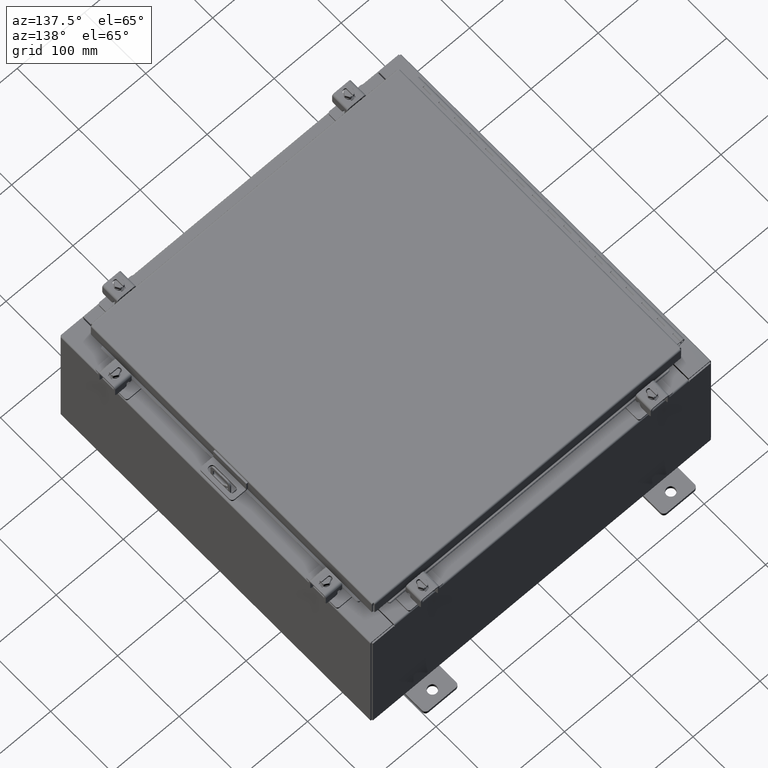
[diagram: clean part render]
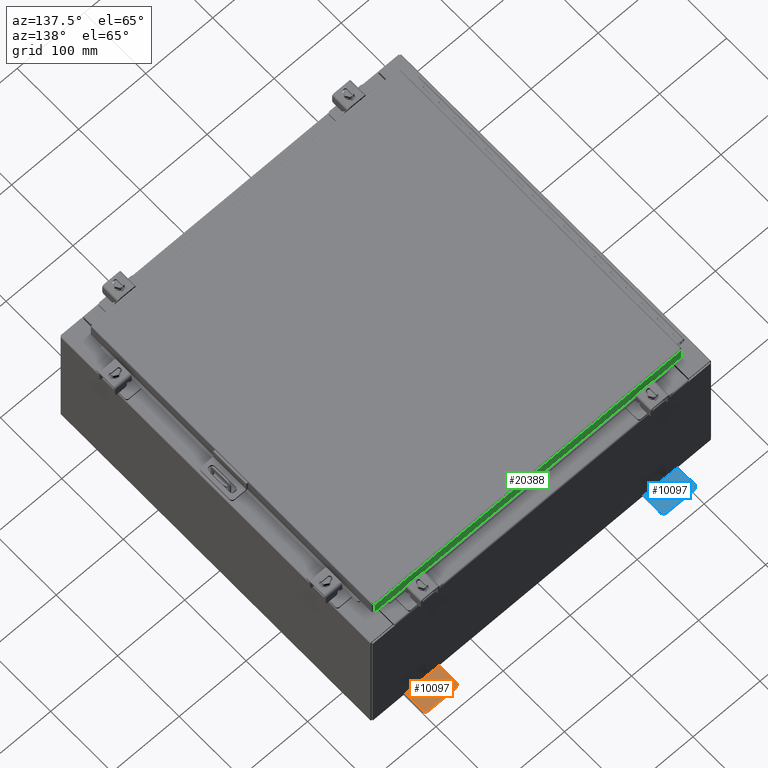
[diagram: same view with three faces highlighted in distinct colors, each labeled with its STEP entity id]
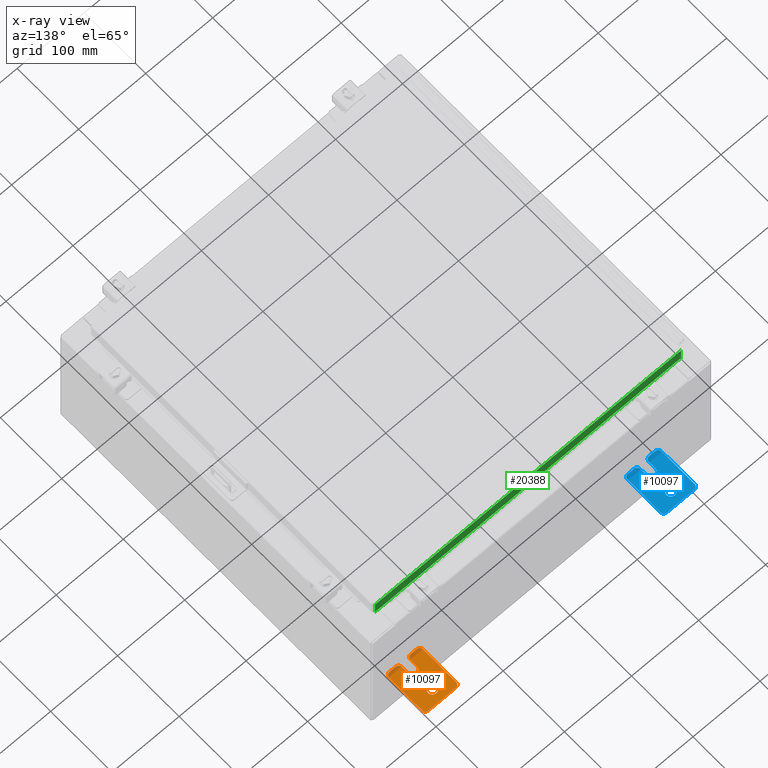
[diagram: x-ray of the same camera — body ghosted, the three highlighted faces saturated]
A machine part, auxiliary view with three faces highlighted in distinct colors.
The next image is the same camera in x-ray (body ghosted, the three faces saturated) — at least one of them is partly hidden behind the body in this view.
Their STEP definitions:

[orange] entity #10097 — the highlighted planar face has unit normal (0, 0, 1).
#347 = CARTESIAN_POINT ( 'NONE',  ( 0.0000000000000000000, 1.059999999999996500, 0.9999999999999953400 ) ) ;
#466 = AXIS2_PLACEMENT_3D ( 'NONE', #19202, #5560, #21464 ) ;
#662 = CARTESIAN_POINT ( 'NONE',  ( 0.0000000000000000000, -1.250000000000002400, 0.8099999999999980500 ) ) ;
#760 = EDGE_CURVE ( 'NONE', #23629, #21292, #14303, .T. ) ;
#955 = DIRECTION ( 'NONE',  ( -5.163192708025533800E-017, 0.0000000000000000000, -1.000000000000000000 ) ) ;
#982 = EDGE_CURVE ( 'NONE', #22516, #4369, #25310, .T. ) ;
#1353 = CARTESIAN_POINT ( 'NONE',  ( 0.0000000000000000000, 1.059999999999993600, -0.8100000000000089400 ) ) ;
#1372 = FACE_OUTER_BOUND ( 'NONE', #18680, .T. ) ;
#1527 = DIRECTION ( 'NONE',  ( -0.0000000000000000000, 0.0000000000000000000, -1.000000000000000000 ) ) ;
#1791 = LINE ( 'NONE', #5269, #19959 ) ;
#1862 = DIRECTION ( 'NONE',  ( -1.000000000000000000, 6.523827964459549700E-016, 5.163192708025532000E-017 ) ) ;
#2011 = CARTESIAN_POINT ( 'NONE',  ( 4.780733988912460100E-016, -0.6249999999999993300, -0.2499999999999998600 ) ) ;
#2078 = CARTESIAN_POINT ( 'NONE',  ( 3.910348609313009100E-016, 0.6249999999999992200, -0.2499999999999999200 ) ) ;
#2173 = CARTESIAN_POINT ( 'NONE',  ( 0.0000000000000000000, -1.250000000000003100, 0.4400000000000020000 ) ) ;
#2844 = DIRECTION ( 'NONE',  ( 1.000000000000000000, 0.0000000000000000000, -0.0000000000000000000 ) ) ;
#3582 = CARTESIAN_POINT ( 'NONE',  ( 0.0000000000000000000, -1.250000000000005600, -1.000000000000006200 ) ) ;
#3638 = VERTEX_POINT ( 'NONE', #2078 ) ;
#3649 = DIRECTION ( 'NONE',  ( 0.0000000000000000000, 0.0000000000000000000, -1.000000000000000000 ) ) ;
#3862 = VERTEX_POINT ( 'NONE', #27881 ) ;
#4307 = ORIENTED_EDGE ( 'NONE', *, *, #10979, .T. ) ;
#4369 = VERTEX_POINT ( 'NONE', #16164 ) ;
#4384 = CARTESIAN_POINT ( 'NONE',  ( 0.0000000000000000000, 1.249999999999994700, -0.8100000000000092700 ) ) ;
#4444 = VERTEX_POINT ( 'NONE', #18748 ) ;
#4639 = CIRCLE ( 'NONE', #8251, 0.1900000000000011100 ) ;
#5055 = CARTESIAN_POINT ( 'NONE',  ( 4.039428427013647300E-016, 0.6249999999999992200, -9.783840404509077400E-018 ) ) ;
#5269 = CARTESIAN_POINT ( 'NONE',  ( 0.0000000000000000000, 1.249999999999997600, 0.9999999999999951200 ) ) ;
#5336 = EDGE_CURVE ( 'NONE', #3638, #22408, #22710, .T. ) ;
#5339 = DIRECTION ( 'NONE',  ( 6.556435184794182400E-016, 1.000000000000000000, 0.0000000000000000000 ) ) ;
#5340 = EDGE_CURVE ( 'NONE', #8873, #4444, #28729, .T. ) ;
#5560 = DIRECTION ( 'NONE',  ( 1.000000000000000000, 0.0000000000000000000, -0.0000000000000000000 ) ) ;
#5920 = LINE ( 'NONE', #11572, #11965 ) ;
#6314 = AXIS2_PLACEMENT_3D ( 'NONE', #16464, #2844, #18771 ) ;
#6325 = EDGE_CURVE ( 'NONE', #10659, #22516, #5920, .T. ) ;
#6500 = AXIS2_PLACEMENT_3D ( 'NONE', #13315, #29231, #15614 ) ;
#6674 = CARTESIAN_POINT ( 'NONE',  ( 0.0000000000000000000, -1.060000000000002100, 0.4400000000000016700 ) ) ;
#7330 = DIRECTION ( 'NONE',  ( -5.163192708025533800E-017, 0.0000000000000000000, -1.000000000000000000 ) ) ;
#7976 = EDGE_CURVE ( 'NONE', #22408, #3638, #25038, .T. ) ;
#8251 = AXIS2_PLACEMENT_3D ( 'NONE', #24496, #10890, #26764 ) ;
#8414 = DIRECTION ( 'NONE',  ( -6.556435184794182400E-016, -1.000000000000000000, -1.639108796198545600E-016 ) ) ;
#8873 = VERTEX_POINT ( 'NONE', #24065 ) ;
#8950 = DIRECTION ( 'NONE',  ( 0.0000000000000000000, 0.0000000000000000000, -1.000000000000000000 ) ) ;
#8965 = VECTOR ( 'NONE', #25726, 39.37007874015748100 ) ;
#9364 = EDGE_CURVE ( 'NONE', #29335, #27128, #1791, .T. ) ;
#9409 = EDGE_CURVE ( 'NONE', #17784, #8873, #18513, .T. ) ;
#9713 = VERTEX_POINT ( 'NONE', #20083 ) ;
#10097 = ADVANCED_FACE ( 'NONE', ( #18845, #1372 ), #12870, .T. ) ;
#10159 = CARTESIAN_POINT ( 'NONE',  ( 0.0000000000000000000, 1.249999999999997300, 0.8099999999999935000 ) ) ;
#10348 = DIRECTION ( 'NONE',  ( 0.0000000000000000000, 1.000000000000000000, -1.639108796198558100E-015 ) ) ;
#10435 = VECTOR ( 'NONE', #8414, 39.37007874015748100 ) ;
#10659 = VERTEX_POINT ( 'NONE', #662 ) ;
#10890 = DIRECTION ( 'NONE',  ( 1.000000000000000000, 0.0000000000000000000, -0.0000000000000000000 ) ) ;
#10923 = CARTESIAN_POINT ( 'NONE',  ( 4.168508244714285900E-016, 0.6249999999999992200, 0.2499999999999999200 ) ) ;
#10979 = EDGE_CURVE ( 'NONE', #27031, #14050, #26199, .T. ) ;
#11338 = EDGE_CURVE ( 'NONE', #4369, #27031, #11633, .T. ) ;
#11572 = CARTESIAN_POINT ( 'NONE',  ( 0.0000000000000000000, -1.250000000000002200, 0.9999999999999992200 ) ) ;
#11633 = LINE ( 'NONE', #18966, #29063 ) ;
#11870 = LINE ( 'NONE', #24410, #10435 ) ;
#11965 = VECTOR ( 'NONE', #23003, 39.37007874015748100 ) ;
#12156 = EDGE_CURVE ( 'NONE', #4444, #9713, #17286, .T. ) ;
#12250 = ORIENTED_EDGE ( 'NONE', *, *, #7976, .F. ) ;
#12454 = VECTOR ( 'NONE', #14511, 39.37007874015748100 ) ;
#12508 = CIRCLE ( 'NONE', #21170, 0.1900000000000011100 ) ;
#12727 = ORIENTED_EDGE ( 'NONE', *, *, #6325, .T. ) ;
#12870 = PLANE ( 'NONE',  #27080 ) ;
#12987 = CARTESIAN_POINT ( 'NONE',  ( 0.0000000000000000000, -0.6249999999999992200, 0.2500000000000005000 ) ) ;
#13315 = CARTESIAN_POINT ( 'NONE',  ( 0.0000000000000000000, 1.059999999999996300, 0.8099999999999938400 ) ) ;
#13386 = ORIENTED_EDGE ( 'NONE', *, *, #9409, .T. ) ;
#14050 = VERTEX_POINT ( 'NONE', #2011 ) ;
#14069 = ORIENTED_EDGE ( 'NONE', *, *, #982, .T. ) ;
#14303 = LINE ( 'NONE', #16711, #8965 ) ;
#14511 = DIRECTION ( 'NONE',  ( 0.0000000000000000000, -1.639108796198553600E-015, -1.000000000000000000 ) ) ;
#14619 = DIRECTION ( 'NONE',  ( 1.000000000000000000, -0.0000000000000000000, -5.163192708025532000E-017 ) ) ;
#15184 = DIRECTION ( 'NONE',  ( 1.000000000000000000, 0.0000000000000000000, -0.0000000000000000000 ) ) ;
#15488 = CARTESIAN_POINT ( 'NONE',  ( 4.780733988912460100E-016, -0.6249999999999993300, 5.858939755051854500E-017 ) ) ;
#15614 = DIRECTION ( 'NONE',  ( 0.0000000000000000000, 0.0000000000000000000, -1.000000000000000000 ) ) ;
#15871 = VECTOR ( 'NONE', #10348, 39.37007874015748100 ) ;
#16164 = CARTESIAN_POINT ( 'NONE',  ( 1.928684683526972300E-016, -1.060000000000002100, 0.2500000000000005000 ) ) ;
#16464 = CARTESIAN_POINT ( 'NONE',  ( 0.0000000000000000000, -1.060000000000001600, 0.8099999999999978300 ) ) ;
#16617 = ORIENTED_EDGE ( 'NONE', *, *, #12156, .T. ) ;
#16711 = CARTESIAN_POINT ( 'NONE',  ( 0.0000000000000000000, 1.249999999999994200, -1.000000000000010400 ) ) ;
#17283 = DIRECTION ( 'NONE',  ( 1.000000000000000000, 0.0000000000000000000, -0.0000000000000000000 ) ) ;
#17286 = LINE ( 'NONE', #3582, #15871 ) ;
#17770 = DIRECTION ( 'NONE',  ( -6.523827964459551700E-016, -1.000000000000000000, 0.0000000000000000000 ) ) ;
#17784 = VERTEX_POINT ( 'NONE', #19106 ) ;
#18513 = LINE ( 'NONE', #21277, #12454 ) ;
#18680 = EDGE_LOOP ( 'NONE', ( #26521, #26258, #12727, #14069, #28560, #4307, #29493, #28456, #13386, #21836, #16617, #28951, #24698, #28303 ) ) ;
#18748 = CARTESIAN_POINT ( 'NONE',  ( 0.0000000000000000000, -1.060000000000004500, -1.000000000000006400 ) ) ;
#18771 = DIRECTION ( 'NONE',  ( 0.0000000000000000000, 0.0000000000000000000, -1.000000000000000000 ) ) ;
#18845 = FACE_BOUND ( 'NONE', #28246, .T. ) ;
#18966 = CARTESIAN_POINT ( 'NONE',  ( 6.829619984160658000E-017, -1.250000000000003800, 0.2500000000000005000 ) ) ;
#19106 = CARTESIAN_POINT ( 'NONE',  ( 0.0000000000000000000, -1.250000000000004700, -0.4400000000000002200 ) ) ;
#19202 = CARTESIAN_POINT ( 'NONE',  ( 0.0000000000000000000, -1.060000000000004100, -0.8100000000000050500 ) ) ;
#19959 = VECTOR ( 'NONE', #27906, 39.37007874015748100 ) ;
#20083 = CARTESIAN_POINT ( 'NONE',  ( 0.0000000000000000000, 1.059999999999993400, -1.000000000000010000 ) ) ;
#20338 = EDGE_CURVE ( 'NONE', #14050, #3862, #11870, .T. ) ;
#20785 = AXIS2_PLACEMENT_3D ( 'NONE', #6674, #22582, #8950 ) ;
#20949 = DIRECTION ( 'NONE',  ( 1.000000000000000000, -0.0000000000000000000, -5.163192708025532000E-017 ) ) ;
#21170 = AXIS2_PLACEMENT_3D ( 'NONE', #1353, #17283, #3649 ) ;
#21277 = CARTESIAN_POINT ( 'NONE',  ( 0.0000000000000000000, -1.250000000000002200, 0.9999999999999992200 ) ) ;
#21292 = VERTEX_POINT ( 'NONE', #10159 ) ;
#21464 = DIRECTION ( 'NONE',  ( 0.0000000000000000000, 0.0000000000000000000, -1.000000000000000000 ) ) ;
#21836 = ORIENTED_EDGE ( 'NONE', *, *, #5340, .T. ) ;
#21927 = CARTESIAN_POINT ( 'NONE',  ( 0.0000000000000000000, 0.0000000000000000000, 0.0000000000000000000 ) ) ;
#22408 = VERTEX_POINT ( 'NONE', #10923 ) ;
#22516 = VERTEX_POINT ( 'NONE', #2173 ) ;
#22553 = CARTESIAN_POINT ( 'NONE',  ( 0.0000000000000000000, -1.060000000000001200, 0.9999999999999988900 ) ) ;
#22582 = DIRECTION ( 'NONE',  ( 1.000000000000000000, 0.0000000000000000000, -0.0000000000000000000 ) ) ;
#22710 = CIRCLE ( 'NONE', #28466, 0.2499999999999999200 ) ;
#23003 = DIRECTION ( 'NONE',  ( 0.0000000000000000000, -1.639108796198553600E-015, -1.000000000000000000 ) ) ;
#23017 = EDGE_CURVE ( 'NONE', #3862, #17784, #4639, .T. ) ;
#23629 = VERTEX_POINT ( 'NONE', #4384 ) ;
#24065 = CARTESIAN_POINT ( 'NONE',  ( 0.0000000000000000000, -1.250000000000005300, -0.8100000000000047200 ) ) ;
#24410 = CARTESIAN_POINT ( 'NONE',  ( 4.780733988912460100E-016, -0.6249999999999993300, -0.2499999999999993900 ) ) ;
#24496 = CARTESIAN_POINT ( 'NONE',  ( 0.0000000000000000000, -1.060000000000003400, -0.4400000000000005000 ) ) ;
#24698 = ORIENTED_EDGE ( 'NONE', *, *, #760, .T. ) ;
#25038 = CIRCLE ( 'NONE', #27364, 0.2499999999999999200 ) ;
#25310 = CIRCLE ( 'NONE', #20785, 0.1900000000000011400 ) ;
#25726 = DIRECTION ( 'NONE',  ( 0.0000000000000000000, 1.639108796198553600E-015, 1.000000000000000000 ) ) ;
#26199 = CIRCLE ( 'NONE', #28450, 0.2499999999999999200 ) ;
#26258 = ORIENTED_EDGE ( 'NONE', *, *, #29369, .T. ) ;
#26366 = CIRCLE ( 'NONE', #6500, 0.1900000000000011100 ) ;
#26521 = ORIENTED_EDGE ( 'NONE', *, *, #9364, .T. ) ;
#26764 = DIRECTION ( 'NONE',  ( 0.0000000000000000000, 0.0000000000000000000, -1.000000000000000000 ) ) ;
#27031 = VERTEX_POINT ( 'NONE', #12987 ) ;
#27080 = AXIS2_PLACEMENT_3D ( 'NONE', #21927, #15184, #1527 ) ;
#27128 = VERTEX_POINT ( 'NONE', #22553 ) ;
#27364 = AXIS2_PLACEMENT_3D ( 'NONE', #5055, #20949, #7330 ) ;
#27392 = CIRCLE ( 'NONE', #6314, 0.1900000000000011100 ) ;
#27881 = CARTESIAN_POINT ( 'NONE',  ( 1.928684683526964400E-016, -1.060000000000003400, -0.2499999999999994400 ) ) ;
#27906 = DIRECTION ( 'NONE',  ( 0.0000000000000000000, -1.000000000000000000, 1.639108796198558100E-015 ) ) ;
#28192 = CARTESIAN_POINT ( 'NONE',  ( 4.039428427013647300E-016, 0.6249999999999992200, -9.783840404509077400E-018 ) ) ;
#28246 = EDGE_LOOP ( 'NONE', ( #28592, #12250 ) ) ;
#28303 = ORIENTED_EDGE ( 'NONE', *, *, #28634, .T. ) ;
#28450 = AXIS2_PLACEMENT_3D ( 'NONE', #15488, #1862, #17770 ) ;
#28456 = ORIENTED_EDGE ( 'NONE', *, *, #23017, .T. ) ;
#28466 = AXIS2_PLACEMENT_3D ( 'NONE', #28192, #14619, #955 ) ;
#28560 = ORIENTED_EDGE ( 'NONE', *, *, #11338, .T. ) ;
#28592 = ORIENTED_EDGE ( 'NONE', *, *, #5336, .F. ) ;
#28634 = EDGE_CURVE ( 'NONE', #21292, #29335, #26366, .T. ) ;
#28729 = CIRCLE ( 'NONE', #466, 0.1900000000000011100 ) ;
#28951 = ORIENTED_EDGE ( 'NONE', *, *, #28998, .T. ) ;
#28998 = EDGE_CURVE ( 'NONE', #9713, #23629, #12508, .T. ) ;
#29063 = VECTOR ( 'NONE', #5339, 39.37007874015748100 ) ;
#29231 = DIRECTION ( 'NONE',  ( 1.000000000000000000, 0.0000000000000000000, -0.0000000000000000000 ) ) ;
#29335 = VERTEX_POINT ( 'NONE', #347 ) ;
#29369 = EDGE_CURVE ( 'NONE', #27128, #10659, #27392, .T. ) ;
#29493 = ORIENTED_EDGE ( 'NONE', *, *, #20338, .T. ) ;

[blue] entity #10097 — the highlighted planar face has unit normal (0, 0, 1).
#347 = CARTESIAN_POINT ( 'NONE',  ( 0.0000000000000000000, 1.059999999999996500, 0.9999999999999953400 ) ) ;
#466 = AXIS2_PLACEMENT_3D ( 'NONE', #19202, #5560, #21464 ) ;
#662 = CARTESIAN_POINT ( 'NONE',  ( 0.0000000000000000000, -1.250000000000002400, 0.8099999999999980500 ) ) ;
#760 = EDGE_CURVE ( 'NONE', #23629, #21292, #14303, .T. ) ;
#955 = DIRECTION ( 'NONE',  ( -5.163192708025533800E-017, 0.0000000000000000000, -1.000000000000000000 ) ) ;
#982 = EDGE_CURVE ( 'NONE', #22516, #4369, #25310, .T. ) ;
#1353 = CARTESIAN_POINT ( 'NONE',  ( 0.0000000000000000000, 1.059999999999993600, -0.8100000000000089400 ) ) ;
#1372 = FACE_OUTER_BOUND ( 'NONE', #18680, .T. ) ;
#1527 = DIRECTION ( 'NONE',  ( -0.0000000000000000000, 0.0000000000000000000, -1.000000000000000000 ) ) ;
#1791 = LINE ( 'NONE', #5269, #19959 ) ;
#1862 = DIRECTION ( 'NONE',  ( -1.000000000000000000, 6.523827964459549700E-016, 5.163192708025532000E-017 ) ) ;
#2011 = CARTESIAN_POINT ( 'NONE',  ( 4.780733988912460100E-016, -0.6249999999999993300, -0.2499999999999998600 ) ) ;
#2078 = CARTESIAN_POINT ( 'NONE',  ( 3.910348609313009100E-016, 0.6249999999999992200, -0.2499999999999999200 ) ) ;
#2173 = CARTESIAN_POINT ( 'NONE',  ( 0.0000000000000000000, -1.250000000000003100, 0.4400000000000020000 ) ) ;
#2844 = DIRECTION ( 'NONE',  ( 1.000000000000000000, 0.0000000000000000000, -0.0000000000000000000 ) ) ;
#3582 = CARTESIAN_POINT ( 'NONE',  ( 0.0000000000000000000, -1.250000000000005600, -1.000000000000006200 ) ) ;
#3638 = VERTEX_POINT ( 'NONE', #2078 ) ;
#3649 = DIRECTION ( 'NONE',  ( 0.0000000000000000000, 0.0000000000000000000, -1.000000000000000000 ) ) ;
#3862 = VERTEX_POINT ( 'NONE', #27881 ) ;
#4307 = ORIENTED_EDGE ( 'NONE', *, *, #10979, .T. ) ;
#4369 = VERTEX_POINT ( 'NONE', #16164 ) ;
#4384 = CARTESIAN_POINT ( 'NONE',  ( 0.0000000000000000000, 1.249999999999994700, -0.8100000000000092700 ) ) ;
#4444 = VERTEX_POINT ( 'NONE', #18748 ) ;
#4639 = CIRCLE ( 'NONE', #8251, 0.1900000000000011100 ) ;
#5055 = CARTESIAN_POINT ( 'NONE',  ( 4.039428427013647300E-016, 0.6249999999999992200, -9.783840404509077400E-018 ) ) ;
#5269 = CARTESIAN_POINT ( 'NONE',  ( 0.0000000000000000000, 1.249999999999997600, 0.9999999999999951200 ) ) ;
#5336 = EDGE_CURVE ( 'NONE', #3638, #22408, #22710, .T. ) ;
#5339 = DIRECTION ( 'NONE',  ( 6.556435184794182400E-016, 1.000000000000000000, 0.0000000000000000000 ) ) ;
#5340 = EDGE_CURVE ( 'NONE', #8873, #4444, #28729, .T. ) ;
#5560 = DIRECTION ( 'NONE',  ( 1.000000000000000000, 0.0000000000000000000, -0.0000000000000000000 ) ) ;
#5920 = LINE ( 'NONE', #11572, #11965 ) ;
#6314 = AXIS2_PLACEMENT_3D ( 'NONE', #16464, #2844, #18771 ) ;
#6325 = EDGE_CURVE ( 'NONE', #10659, #22516, #5920, .T. ) ;
#6500 = AXIS2_PLACEMENT_3D ( 'NONE', #13315, #29231, #15614 ) ;
#6674 = CARTESIAN_POINT ( 'NONE',  ( 0.0000000000000000000, -1.060000000000002100, 0.4400000000000016700 ) ) ;
#7330 = DIRECTION ( 'NONE',  ( -5.163192708025533800E-017, 0.0000000000000000000, -1.000000000000000000 ) ) ;
#7976 = EDGE_CURVE ( 'NONE', #22408, #3638, #25038, .T. ) ;
#8251 = AXIS2_PLACEMENT_3D ( 'NONE', #24496, #10890, #26764 ) ;
#8414 = DIRECTION ( 'NONE',  ( -6.556435184794182400E-016, -1.000000000000000000, -1.639108796198545600E-016 ) ) ;
#8873 = VERTEX_POINT ( 'NONE', #24065 ) ;
#8950 = DIRECTION ( 'NONE',  ( 0.0000000000000000000, 0.0000000000000000000, -1.000000000000000000 ) ) ;
#8965 = VECTOR ( 'NONE', #25726, 39.37007874015748100 ) ;
#9364 = EDGE_CURVE ( 'NONE', #29335, #27128, #1791, .T. ) ;
#9409 = EDGE_CURVE ( 'NONE', #17784, #8873, #18513, .T. ) ;
#9713 = VERTEX_POINT ( 'NONE', #20083 ) ;
#10097 = ADVANCED_FACE ( 'NONE', ( #18845, #1372 ), #12870, .T. ) ;
#10159 = CARTESIAN_POINT ( 'NONE',  ( 0.0000000000000000000, 1.249999999999997300, 0.8099999999999935000 ) ) ;
#10348 = DIRECTION ( 'NONE',  ( 0.0000000000000000000, 1.000000000000000000, -1.639108796198558100E-015 ) ) ;
#10435 = VECTOR ( 'NONE', #8414, 39.37007874015748100 ) ;
#10659 = VERTEX_POINT ( 'NONE', #662 ) ;
#10890 = DIRECTION ( 'NONE',  ( 1.000000000000000000, 0.0000000000000000000, -0.0000000000000000000 ) ) ;
#10923 = CARTESIAN_POINT ( 'NONE',  ( 4.168508244714285900E-016, 0.6249999999999992200, 0.2499999999999999200 ) ) ;
#10979 = EDGE_CURVE ( 'NONE', #27031, #14050, #26199, .T. ) ;
#11338 = EDGE_CURVE ( 'NONE', #4369, #27031, #11633, .T. ) ;
#11572 = CARTESIAN_POINT ( 'NONE',  ( 0.0000000000000000000, -1.250000000000002200, 0.9999999999999992200 ) ) ;
#11633 = LINE ( 'NONE', #18966, #29063 ) ;
#11870 = LINE ( 'NONE', #24410, #10435 ) ;
#11965 = VECTOR ( 'NONE', #23003, 39.37007874015748100 ) ;
#12156 = EDGE_CURVE ( 'NONE', #4444, #9713, #17286, .T. ) ;
#12250 = ORIENTED_EDGE ( 'NONE', *, *, #7976, .F. ) ;
#12454 = VECTOR ( 'NONE', #14511, 39.37007874015748100 ) ;
#12508 = CIRCLE ( 'NONE', #21170, 0.1900000000000011100 ) ;
#12727 = ORIENTED_EDGE ( 'NONE', *, *, #6325, .T. ) ;
#12870 = PLANE ( 'NONE',  #27080 ) ;
#12987 = CARTESIAN_POINT ( 'NONE',  ( 0.0000000000000000000, -0.6249999999999992200, 0.2500000000000005000 ) ) ;
#13315 = CARTESIAN_POINT ( 'NONE',  ( 0.0000000000000000000, 1.059999999999996300, 0.8099999999999938400 ) ) ;
#13386 = ORIENTED_EDGE ( 'NONE', *, *, #9409, .T. ) ;
#14050 = VERTEX_POINT ( 'NONE', #2011 ) ;
#14069 = ORIENTED_EDGE ( 'NONE', *, *, #982, .T. ) ;
#14303 = LINE ( 'NONE', #16711, #8965 ) ;
#14511 = DIRECTION ( 'NONE',  ( 0.0000000000000000000, -1.639108796198553600E-015, -1.000000000000000000 ) ) ;
#14619 = DIRECTION ( 'NONE',  ( 1.000000000000000000, -0.0000000000000000000, -5.163192708025532000E-017 ) ) ;
#15184 = DIRECTION ( 'NONE',  ( 1.000000000000000000, 0.0000000000000000000, -0.0000000000000000000 ) ) ;
#15488 = CARTESIAN_POINT ( 'NONE',  ( 4.780733988912460100E-016, -0.6249999999999993300, 5.858939755051854500E-017 ) ) ;
#15614 = DIRECTION ( 'NONE',  ( 0.0000000000000000000, 0.0000000000000000000, -1.000000000000000000 ) ) ;
#15871 = VECTOR ( 'NONE', #10348, 39.37007874015748100 ) ;
#16164 = CARTESIAN_POINT ( 'NONE',  ( 1.928684683526972300E-016, -1.060000000000002100, 0.2500000000000005000 ) ) ;
#16464 = CARTESIAN_POINT ( 'NONE',  ( 0.0000000000000000000, -1.060000000000001600, 0.8099999999999978300 ) ) ;
#16617 = ORIENTED_EDGE ( 'NONE', *, *, #12156, .T. ) ;
#16711 = CARTESIAN_POINT ( 'NONE',  ( 0.0000000000000000000, 1.249999999999994200, -1.000000000000010400 ) ) ;
#17283 = DIRECTION ( 'NONE',  ( 1.000000000000000000, 0.0000000000000000000, -0.0000000000000000000 ) ) ;
#17286 = LINE ( 'NONE', #3582, #15871 ) ;
#17770 = DIRECTION ( 'NONE',  ( -6.523827964459551700E-016, -1.000000000000000000, 0.0000000000000000000 ) ) ;
#17784 = VERTEX_POINT ( 'NONE', #19106 ) ;
#18513 = LINE ( 'NONE', #21277, #12454 ) ;
#18680 = EDGE_LOOP ( 'NONE', ( #26521, #26258, #12727, #14069, #28560, #4307, #29493, #28456, #13386, #21836, #16617, #28951, #24698, #28303 ) ) ;
#18748 = CARTESIAN_POINT ( 'NONE',  ( 0.0000000000000000000, -1.060000000000004500, -1.000000000000006400 ) ) ;
#18771 = DIRECTION ( 'NONE',  ( 0.0000000000000000000, 0.0000000000000000000, -1.000000000000000000 ) ) ;
#18845 = FACE_BOUND ( 'NONE', #28246, .T. ) ;
#18966 = CARTESIAN_POINT ( 'NONE',  ( 6.829619984160658000E-017, -1.250000000000003800, 0.2500000000000005000 ) ) ;
#19106 = CARTESIAN_POINT ( 'NONE',  ( 0.0000000000000000000, -1.250000000000004700, -0.4400000000000002200 ) ) ;
#19202 = CARTESIAN_POINT ( 'NONE',  ( 0.0000000000000000000, -1.060000000000004100, -0.8100000000000050500 ) ) ;
#19959 = VECTOR ( 'NONE', #27906, 39.37007874015748100 ) ;
#20083 = CARTESIAN_POINT ( 'NONE',  ( 0.0000000000000000000, 1.059999999999993400, -1.000000000000010000 ) ) ;
#20338 = EDGE_CURVE ( 'NONE', #14050, #3862, #11870, .T. ) ;
#20785 = AXIS2_PLACEMENT_3D ( 'NONE', #6674, #22582, #8950 ) ;
#20949 = DIRECTION ( 'NONE',  ( 1.000000000000000000, -0.0000000000000000000, -5.163192708025532000E-017 ) ) ;
#21170 = AXIS2_PLACEMENT_3D ( 'NONE', #1353, #17283, #3649 ) ;
#21277 = CARTESIAN_POINT ( 'NONE',  ( 0.0000000000000000000, -1.250000000000002200, 0.9999999999999992200 ) ) ;
#21292 = VERTEX_POINT ( 'NONE', #10159 ) ;
#21464 = DIRECTION ( 'NONE',  ( 0.0000000000000000000, 0.0000000000000000000, -1.000000000000000000 ) ) ;
#21836 = ORIENTED_EDGE ( 'NONE', *, *, #5340, .T. ) ;
#21927 = CARTESIAN_POINT ( 'NONE',  ( 0.0000000000000000000, 0.0000000000000000000, 0.0000000000000000000 ) ) ;
#22408 = VERTEX_POINT ( 'NONE', #10923 ) ;
#22516 = VERTEX_POINT ( 'NONE', #2173 ) ;
#22553 = CARTESIAN_POINT ( 'NONE',  ( 0.0000000000000000000, -1.060000000000001200, 0.9999999999999988900 ) ) ;
#22582 = DIRECTION ( 'NONE',  ( 1.000000000000000000, 0.0000000000000000000, -0.0000000000000000000 ) ) ;
#22710 = CIRCLE ( 'NONE', #28466, 0.2499999999999999200 ) ;
#23003 = DIRECTION ( 'NONE',  ( 0.0000000000000000000, -1.639108796198553600E-015, -1.000000000000000000 ) ) ;
#23017 = EDGE_CURVE ( 'NONE', #3862, #17784, #4639, .T. ) ;
#23629 = VERTEX_POINT ( 'NONE', #4384 ) ;
#24065 = CARTESIAN_POINT ( 'NONE',  ( 0.0000000000000000000, -1.250000000000005300, -0.8100000000000047200 ) ) ;
#24410 = CARTESIAN_POINT ( 'NONE',  ( 4.780733988912460100E-016, -0.6249999999999993300, -0.2499999999999993900 ) ) ;
#24496 = CARTESIAN_POINT ( 'NONE',  ( 0.0000000000000000000, -1.060000000000003400, -0.4400000000000005000 ) ) ;
#24698 = ORIENTED_EDGE ( 'NONE', *, *, #760, .T. ) ;
#25038 = CIRCLE ( 'NONE', #27364, 0.2499999999999999200 ) ;
#25310 = CIRCLE ( 'NONE', #20785, 0.1900000000000011400 ) ;
#25726 = DIRECTION ( 'NONE',  ( 0.0000000000000000000, 1.639108796198553600E-015, 1.000000000000000000 ) ) ;
#26199 = CIRCLE ( 'NONE', #28450, 0.2499999999999999200 ) ;
#26258 = ORIENTED_EDGE ( 'NONE', *, *, #29369, .T. ) ;
#26366 = CIRCLE ( 'NONE', #6500, 0.1900000000000011100 ) ;
#26521 = ORIENTED_EDGE ( 'NONE', *, *, #9364, .T. ) ;
#26764 = DIRECTION ( 'NONE',  ( 0.0000000000000000000, 0.0000000000000000000, -1.000000000000000000 ) ) ;
#27031 = VERTEX_POINT ( 'NONE', #12987 ) ;
#27080 = AXIS2_PLACEMENT_3D ( 'NONE', #21927, #15184, #1527 ) ;
#27128 = VERTEX_POINT ( 'NONE', #22553 ) ;
#27364 = AXIS2_PLACEMENT_3D ( 'NONE', #5055, #20949, #7330 ) ;
#27392 = CIRCLE ( 'NONE', #6314, 0.1900000000000011100 ) ;
#27881 = CARTESIAN_POINT ( 'NONE',  ( 1.928684683526964400E-016, -1.060000000000003400, -0.2499999999999994400 ) ) ;
#27906 = DIRECTION ( 'NONE',  ( 0.0000000000000000000, -1.000000000000000000, 1.639108796198558100E-015 ) ) ;
#28192 = CARTESIAN_POINT ( 'NONE',  ( 4.039428427013647300E-016, 0.6249999999999992200, -9.783840404509077400E-018 ) ) ;
#28246 = EDGE_LOOP ( 'NONE', ( #28592, #12250 ) ) ;
#28303 = ORIENTED_EDGE ( 'NONE', *, *, #28634, .T. ) ;
#28450 = AXIS2_PLACEMENT_3D ( 'NONE', #15488, #1862, #17770 ) ;
#28456 = ORIENTED_EDGE ( 'NONE', *, *, #23017, .T. ) ;
#28466 = AXIS2_PLACEMENT_3D ( 'NONE', #28192, #14619, #955 ) ;
#28560 = ORIENTED_EDGE ( 'NONE', *, *, #11338, .T. ) ;
#28592 = ORIENTED_EDGE ( 'NONE', *, *, #5336, .F. ) ;
#28634 = EDGE_CURVE ( 'NONE', #21292, #29335, #26366, .T. ) ;
#28729 = CIRCLE ( 'NONE', #466, 0.1900000000000011100 ) ;
#28951 = ORIENTED_EDGE ( 'NONE', *, *, #28998, .T. ) ;
#28998 = EDGE_CURVE ( 'NONE', #9713, #23629, #12508, .T. ) ;
#29063 = VECTOR ( 'NONE', #5339, 39.37007874015748100 ) ;
#29231 = DIRECTION ( 'NONE',  ( 1.000000000000000000, 0.0000000000000000000, -0.0000000000000000000 ) ) ;
#29335 = VERTEX_POINT ( 'NONE', #347 ) ;
#29369 = EDGE_CURVE ( 'NONE', #27128, #10659, #27392, .T. ) ;
#29493 = ORIENTED_EDGE ( 'NONE', *, *, #20338, .T. ) ;

[green] entity #20388 — the highlighted planar face has unit normal (0, -1, -0).
#1586 = LINE ( 'NONE', #5388, #12260 ) ;
#1774 = CARTESIAN_POINT ( 'NONE',  ( -8.239157864376267100, 9.093999999999995900, -0.8500000000000029800 ) ) ;
#1899 = VERTEX_POINT ( 'NONE', #11118 ) ;
#2748 = CARTESIAN_POINT ( 'NONE',  ( -9.077999999999999400, 9.094000000000001200, -0.8500000000000019800 ) ) ;
#3806 = VERTEX_POINT ( 'NONE', #23150 ) ;
#4119 = PLANE ( 'NONE',  #17229 ) ;
#4722 = EDGE_CURVE ( 'NONE', #7102, #7800, #24864, .T. ) ;
#5165 = VECTOR ( 'NONE', #26794, 39.37007874015748100 ) ;
#5388 = CARTESIAN_POINT ( 'NONE',  ( -9.077999999999999400, 9.093999999999999400, -0.08770000000000007000 ) ) ;
#6442 = DIRECTION ( 'NONE',  ( 3.605222026166233900E-031, -1.000000000000000000, -2.818880942772351900E-015 ) ) ;
#7102 = VERTEX_POINT ( 'NONE', #16988 ) ;
#7318 = EDGE_CURVE ( 'NONE', #3806, #21656, #23293, .T. ) ;
#7493 = ORIENTED_EDGE ( 'NONE', *, *, #12969, .F. ) ;
#7800 = VERTEX_POINT ( 'NONE', #10921 ) ;
#7980 = VECTOR ( 'NONE', #20945, 39.37007874015748100 ) ;
#8249 = LINE ( 'NONE', #19830, #19670 ) ;
#8348 = DIRECTION ( 'NONE',  ( 1.000000000000000000, -4.379057701015054300E-047, 1.278955053213606700E-016 ) ) ;
#8946 = EDGE_CURVE ( 'NONE', #25324, #1899, #8249, .T. ) ;
#9497 = ORIENTED_EDGE ( 'NONE', *, *, #8946, .T. ) ;
#10632 = EDGE_LOOP ( 'NONE', ( #18865, #9497, #19734, #16475, #7493, #22070 ) ) ;
#10921 = CARTESIAN_POINT ( 'NONE',  ( -8.989157864376267100, 9.094000000000001200, -0.8500000000000019800 ) ) ;
#11118 = CARTESIAN_POINT ( 'NONE',  ( 8.989157864376267100, 9.094000000000001200, -0.8499999999999996400 ) ) ;
#12228 = EDGE_CURVE ( 'NONE', #21656, #1899, #26481, .T. ) ;
#12260 = VECTOR ( 'NONE', #25829, 39.37007874015748100 ) ;
#12760 = VECTOR ( 'NONE', #25941, 39.37007874015748100 ) ;
#12969 = EDGE_CURVE ( 'NONE', #7800, #3806, #27513, .T. ) ;
#14550 = CARTESIAN_POINT ( 'NONE',  ( -8.989157864376267100, 9.093999999999999400, -0.07469999999999978000 ) ) ;
#15078 = FACE_OUTER_BOUND ( 'NONE', #10632, .T. ) ;
#15252 = CARTESIAN_POINT ( 'NONE',  ( 8.239157864376267100, 9.093999999999995900, -0.8500000000000029800 ) ) ;
#16475 = ORIENTED_EDGE ( 'NONE', *, *, #7318, .F. ) ;
#16988 = CARTESIAN_POINT ( 'NONE',  ( -8.989157864376267100, 9.093999999999999400, -0.08770000000000007000 ) ) ;
#17229 = AXIS2_PLACEMENT_3D ( 'NONE', #29090, #6442, #22352 ) ;
#17960 = CARTESIAN_POINT ( 'NONE',  ( 8.989157864376267100, 9.093999999999999400, -0.08770000000000007000 ) ) ;
#18865 = ORIENTED_EDGE ( 'NONE', *, *, #19539, .F. ) ;
#19539 = EDGE_CURVE ( 'NONE', #25324, #7102, #1586, .T. ) ;
#19670 = VECTOR ( 'NONE', #22094, 39.37007874015748100 ) ;
#19734 = ORIENTED_EDGE ( 'NONE', *, *, #12228, .F. ) ;
#19830 = CARTESIAN_POINT ( 'NONE',  ( 8.989157864376267100, 9.093999999999999400, 2.589571694958335100E-014 ) ) ;
#20388 = ADVANCED_FACE ( 'NONE', ( #15078 ), #4119, .F. ) ;
#20945 = DIRECTION ( 'NONE',  ( 1.000000000000000000, -4.379057701015054300E-047, 1.278955053213606700E-016 ) ) ;
#21656 = VERTEX_POINT ( 'NONE', #15252 ) ;
#22070 = ORIENTED_EDGE ( 'NONE', *, *, #4722, .F. ) ;
#22094 = DIRECTION ( 'NONE',  ( 0.0000000000000000000, 2.818880942772351900E-015, -1.000000000000000000 ) ) ;
#22352 = DIRECTION ( 'NONE',  ( 0.0000000000000000000, 2.818880942772351900E-015, -1.000000000000000000 ) ) ;
#23150 = CARTESIAN_POINT ( 'NONE',  ( -8.239157864376265300, 9.093999999999995900, -0.8500000000000029800 ) ) ;
#23293 = LINE ( 'NONE', #1774, #5165 ) ;
#24260 = CARTESIAN_POINT ( 'NONE',  ( -9.077999999999999400, 9.094000000000001200, -0.8500000000000019800 ) ) ;
#24864 = LINE ( 'NONE', #14550, #12760 ) ;
#25324 = VERTEX_POINT ( 'NONE', #17960 ) ;
#25829 = DIRECTION ( 'NONE',  ( -1.000000000000000000, -3.605222026166234800E-031, -9.826997386333231700E-046 ) ) ;
#25941 = DIRECTION ( 'NONE',  ( -0.0000000000000000000, 2.818880942772351900E-015, -1.000000000000000000 ) ) ;
#26481 = LINE ( 'NONE', #24260, #27199 ) ;
#26794 = DIRECTION ( 'NONE',  ( 1.000000000000000000, -0.0000000000000000000, -0.0000000000000000000 ) ) ;
#27199 = VECTOR ( 'NONE', #8348, 39.37007874015748100 ) ;
#27513 = LINE ( 'NONE', #2748, #7980 ) ;
#29090 = CARTESIAN_POINT ( 'NONE',  ( -3.278588910595573600E-030, 9.093999999999999400, 2.589571694958335100E-014 ) ) ;